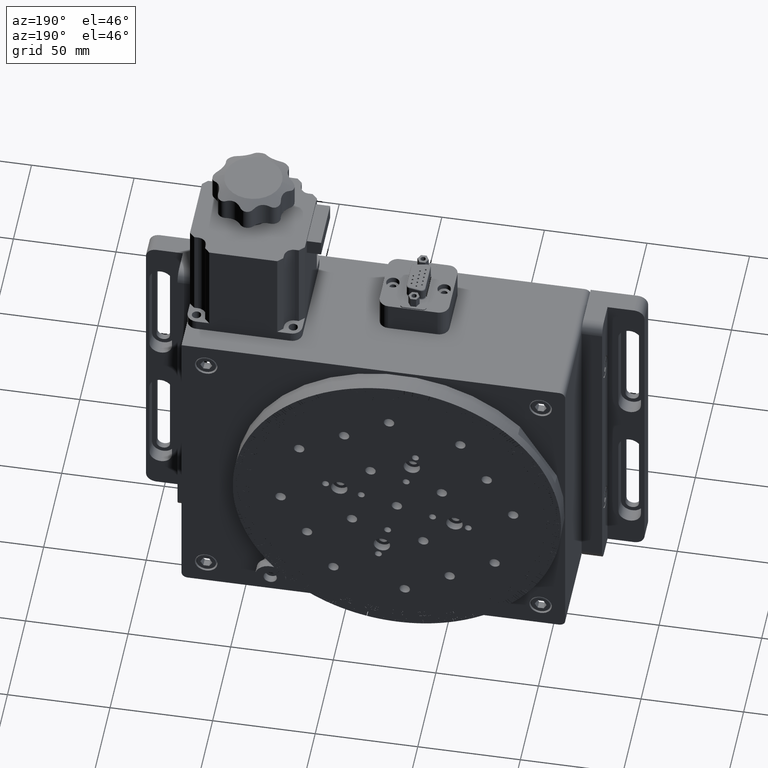
[diagram: clean part render]
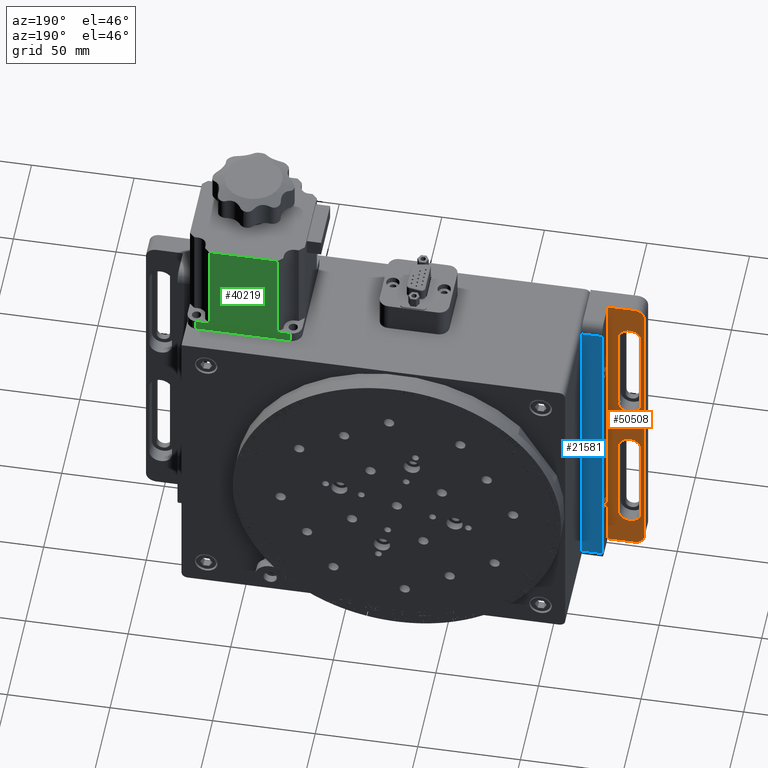
[diagram: same view with three faces highlighted in distinct colors, each labeled with its STEP entity id]
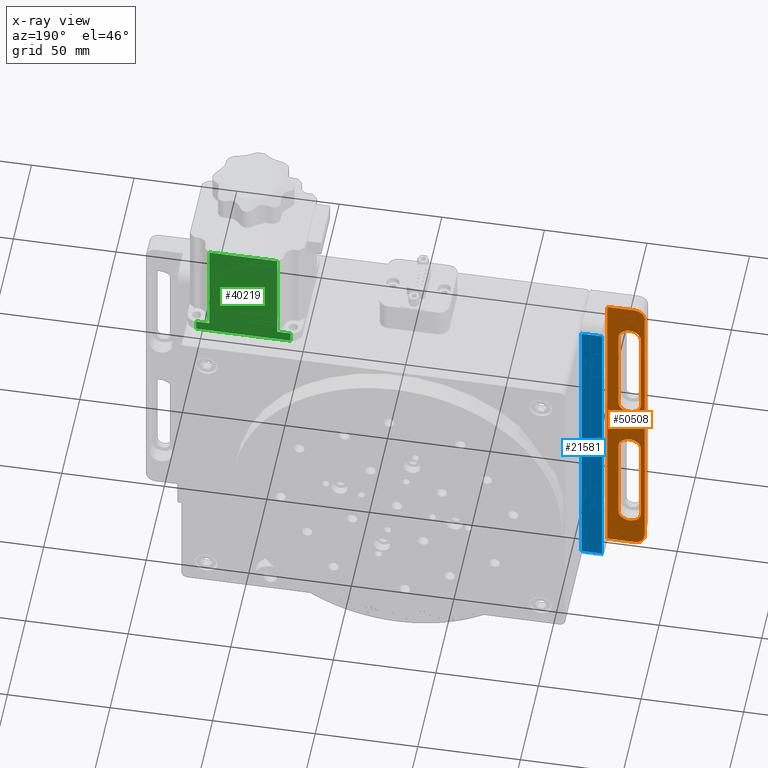
[diagram: x-ray of the same camera — body ghosted, the three highlighted faces saturated]
A machine part, auxiliary view with three faces highlighted in distinct colors.
The next image is the same camera in x-ray (body ghosted, the three faces saturated) — at least one of them is partly hidden behind the body in this view.
Their STEP definitions:

[orange] entity #50508 — the highlighted planar face has unit normal (0, -1, -0).
#1633 = DIRECTION ( 'NONE',  ( 0.0000000000000000000, 0.0000000000000000000, 1.000000000000000000 ) ) ;
#2646 = DIRECTION ( 'NONE',  ( -1.046312889825572800E-016, 1.000000000000000000, 2.312964634635740700E-018 ) ) ;
#2962 = CARTESIAN_POINT ( 'NONE',  ( 78.19999999999987500, 2.500000000000014200, -60.00000000000000700 ) ) ;
#5066 = CIRCLE ( 'NONE', #43935, 5.000000000000004400 ) ;
#6217 = EDGE_LOOP ( 'NONE', ( #17689, #30669, #11659, #85972, #66955 ) ) ;
#6474 = LINE ( 'NONE', #66350, #48348 ) ;
#6876 = CIRCLE ( 'NONE', #13412, 5.500000000000000000 ) ;
#8496 = CARTESIAN_POINT ( 'NONE',  ( 65.49999999999990100, 2.500000000000012400, 79.99999999999998600 ) ) ;
#9067 = CARTESIAN_POINT ( 'NONE',  ( 72.69999999999990300, 2.500000000000012400, 14.99999999999997900 ) ) ;
#9614 = CARTESIAN_POINT ( 'NONE',  ( 70.49999999999991500, 2.500000000000012400, 79.99999999999998600 ) ) ;
#9846 = ORIENTED_EDGE ( 'NONE', *, *, #58037, .T. ) ;
#11134 = DIRECTION ( 'NONE',  ( -1.046312889825572800E-016, 1.000000000000000000, 2.312964634635740700E-018 ) ) ;
#11549 = ORIENTED_EDGE ( 'NONE', *, *, #21638, .T. ) ;
#11659 = ORIENTED_EDGE ( 'NONE', *, *, #24937, .F. ) ;
#11674 = CARTESIAN_POINT ( 'NONE',  ( 83.49999999999991500, 2.500000000000014200, 79.99999999999998600 ) ) ;
#11910 = CIRCLE ( 'NONE', #42921, 5.499999999999998200 ) ;
#12031 = EDGE_CURVE ( 'NONE', #78227, #106723, #16577, .T. ) ;
#12056 = VERTEX_POINT ( 'NONE', #9614 ) ;
#12201 = VERTEX_POINT ( 'NONE', #29683 ) ;
#12597 = CARTESIAN_POINT ( 'NONE',  ( 70.49999999999990100, 2.500000000000012400, -75.00000000000001400 ) ) ;
#13412 = AXIS2_PLACEMENT_3D ( 'NONE', #86005, #35806, #94390 ) ;
#13854 = FACE_BOUND ( 'NONE', #23191, .T. ) ;
#14164 = ORIENTED_EDGE ( 'NONE', *, *, #31282, .T. ) ;
#15743 = VERTEX_POINT ( 'NONE', #22290 ) ;
#16288 = VECTOR ( 'NONE', #81412, 1000.000000000000000 ) ;
#16446 = FACE_BOUND ( 'NONE', #6217, .T. ) ;
#16577 = CIRCLE ( 'NONE', #30216, 5.499999999999998200 ) ;
#16885 = DIRECTION ( 'NONE',  ( -1.000000000000000000, -1.046312889825572800E-016, 5.551115123125781500E-017 ) ) ;
#17033 = ORIENTED_EDGE ( 'NONE', *, *, #59038, .F. ) ;
#17455 = DIRECTION ( 'NONE',  ( 0.0000000000000000000, 0.0000000000000000000, 1.000000000000000000 ) ) ;
#17689 = ORIENTED_EDGE ( 'NONE', *, *, #99766, .F. ) ;
#18605 = DIRECTION ( 'NONE',  ( -1.046312889825572800E-016, 1.000000000000000000, 2.312964634635740700E-018 ) ) ;
#20963 = VECTOR ( 'NONE', #102603, 1000.000000000000000 ) ;
#21012 = DIRECTION ( 'NONE',  ( 0.0000000000000000000, 0.0000000000000000000, -1.000000000000000000 ) ) ;
#21638 = EDGE_CURVE ( 'NONE', #87927, #36970, #76589, .T. ) ;
#22290 = CARTESIAN_POINT ( 'NONE',  ( 72.69999999999990300, 2.500000000000012400, -9.500000000000016000 ) ) ;
#22397 = VERTEX_POINT ( 'NONE', #67578 ) ;
#22514 = CARTESIAN_POINT ( 'NONE',  ( 78.19999999999990300, 2.500000000000014200, 59.99999999999996400 ) ) ;
#22853 = CARTESIAN_POINT ( 'NONE',  ( 78.19999999999990300, 2.500000000000014200, 59.99999999999996400 ) ) ;
#23191 = EDGE_LOOP ( 'NONE', ( #30565, #106517, #103382, #17033, #35012 ) ) ;
#23507 = DIRECTION ( 'NONE',  ( 3.205383489499367300E-016, -2.312964634635714500E-018, 1.000000000000000000 ) ) ;
#24937 = EDGE_CURVE ( 'NONE', #84743, #33855, #11910, .T. ) ;
#28478 = DIRECTION ( 'NONE',  ( -5.551115123125782700E-017, 2.312964634635742300E-018, -1.000000000000000000 ) ) ;
#29328 = LINE ( 'NONE', #33921, #93455 ) ;
#29683 = CARTESIAN_POINT ( 'NONE',  ( 67.19999999999988900, 2.500000000000012400, -15.00000000000001200 ) ) ;
#30216 = AXIS2_PLACEMENT_3D ( 'NONE', #91221, #41049, #99593 ) ;
#30565 = ORIENTED_EDGE ( 'NONE', *, *, #80839, .F. ) ;
#30669 = ORIENTED_EDGE ( 'NONE', *, *, #42763, .F. ) ;
#31282 = EDGE_CURVE ( 'NONE', #36970, #81062, #46436, .T. ) ;
#31679 = LINE ( 'NONE', #8496, #95884 ) ;
#31905 = CARTESIAN_POINT ( 'NONE',  ( 83.49999999999991500, 2.500000000000014200, -80.00000000000001400 ) ) ;
#32009 = VECTOR ( 'NONE', #28478, 1000.000000000000000 ) ;
#33298 = EDGE_CURVE ( 'NONE', #22397, #34610, #29328, .T. ) ;
#33855 = VERTEX_POINT ( 'NONE', #106393 ) ;
#33921 = CARTESIAN_POINT ( 'NONE',  ( 65.49999999999990100, 2.500000000000012400, 79.99999999999998600 ) ) ;
#34373 = CIRCLE ( 'NONE', #100650, 5.499999999999998200 ) ;
#34537 = CARTESIAN_POINT ( 'NONE',  ( 67.19999999999988900, 2.500000000000012400, -60.00000000000000700 ) ) ;
#34610 = VERTEX_POINT ( 'NONE', #98483 ) ;
#35012 = ORIENTED_EDGE ( 'NONE', *, *, #35232, .F. ) ;
#35232 = EDGE_CURVE ( 'NONE', #15743, #41308, #6876, .T. ) ;
#35806 = DIRECTION ( 'NONE',  ( -1.046312889825572800E-016, 1.000000000000000000, 2.312964634635740700E-018 ) ) ;
#36970 = VERTEX_POINT ( 'NONE', #31905 ) ;
#38526 = LINE ( 'NONE', #22514, #16288 ) ;
#40555 = EDGE_CURVE ( 'NONE', #103482, #84743, #38526, .T. ) ;
#40831 = EDGE_CURVE ( 'NONE', #71039, #103482, #34373, .T. ) ;
#40939 = LINE ( 'NONE', #2962, #85525 ) ;
#41049 = DIRECTION ( 'NONE',  ( -1.046312889825572800E-016, 1.000000000000000000, 2.312964634635740700E-018 ) ) ;
#41308 = VERTEX_POINT ( 'NONE', #107703 ) ;
#42673 = ORIENTED_EDGE ( 'NONE', *, *, #33298, .F. ) ;
#42763 = EDGE_CURVE ( 'NONE', #33855, #92901, #6474, .T. ) ;
#42921 = AXIS2_PLACEMENT_3D ( 'NONE', #9067, #67612, #17455 ) ;
#43904 = DIRECTION ( 'NONE',  ( 1.046312889825572800E-016, -1.000000000000000000, -2.312964634635748100E-018 ) ) ;
#43935 = AXIS2_PLACEMENT_3D ( 'NONE', #12597, #71129, #21012 ) ;
#46436 = LINE ( 'NONE', #52923, #66075 ) ;
#46586 = CIRCLE ( 'NONE', #100483, 5.000000000000004400 ) ;
#47153 = CARTESIAN_POINT ( 'NONE',  ( 70.49999999999990100, 2.500000000000012400, -80.00000000000001400 ) ) ;
#48348 = VECTOR ( 'NONE', #23507, 1000.000000000000000 ) ;
#49507 = CARTESIAN_POINT ( 'NONE',  ( 78.19999999999990300, 2.500000000000014200, 14.99999999999997700 ) ) ;
#50508 = ADVANCED_FACE ( 'NONE', ( #16446, #13854, #100189 ), #60401, .F. ) ;
#51687 = DIRECTION ( 'NONE',  ( -1.046312889825572800E-016, 1.000000000000000000, 2.312964634635740700E-018 ) ) ;
#52722 = CARTESIAN_POINT ( 'NONE',  ( 72.69999999999990300, 2.500000000000012400, 59.99999999999997900 ) ) ;
#52923 = CARTESIAN_POINT ( 'NONE',  ( 65.49999999999990100, 2.500000000000012400, -80.00000000000001400 ) ) ;
#53046 = DIRECTION ( 'NONE',  ( -5.551115123125782700E-017, 2.312964634635742300E-018, -1.000000000000000000 ) ) ;
#53295 = DIRECTION ( 'NONE',  ( -1.000000000000000000, -1.046312889825572800E-016, 5.551115123125781500E-017 ) ) ;
#56831 = CARTESIAN_POINT ( 'NONE',  ( 78.19999999999987500, 2.500000000000014200, -60.00000000000000700 ) ) ;
#57349 = CIRCLE ( 'NONE', #67594, 5.499999999999998200 ) ;
#58037 = EDGE_CURVE ( 'NONE', #22397, #12056, #46586, .T. ) ;
#58922 = CARTESIAN_POINT ( 'NONE',  ( 72.69999999999990300, 2.500000000000012400, 65.49999999999997200 ) ) ;
#59038 = EDGE_CURVE ( 'NONE', #41308, #78227, #40939, .T. ) ;
#60401 = PLANE ( 'NONE',  #78322 ) ;
#61123 = DIRECTION ( 'NONE',  ( 0.0000000000000000000, 0.0000000000000000000, 1.000000000000000000 ) ) ;
#61268 = CARTESIAN_POINT ( 'NONE',  ( 70.49999999999991500, 2.500000000000012400, 74.99999999999998600 ) ) ;
#64806 = ORIENTED_EDGE ( 'NONE', *, *, #76213, .T. ) ;
#66075 = VECTOR ( 'NONE', #53295, 1000.000000000000000 ) ;
#66350 = CARTESIAN_POINT ( 'NONE',  ( 67.19999999999991800, 2.500000000000012400, 59.99999999999997900 ) ) ;
#66360 = EDGE_CURVE ( 'NONE', #87927, #12056, #31679, .T. ) ;
#66566 = CIRCLE ( 'NONE', #103846, 5.500000000000000000 ) ;
#66955 = ORIENTED_EDGE ( 'NONE', *, *, #40831, .F. ) ;
#67578 = CARTESIAN_POINT ( 'NONE',  ( 65.49999999999990100, 2.500000000000012400, 74.99999999999998600 ) ) ;
#67594 = AXIS2_PLACEMENT_3D ( 'NONE', #52722, #2646, #61123 ) ;
#67612 = DIRECTION ( 'NONE',  ( -1.046312889825572800E-016, 1.000000000000000000, 2.312964634635740700E-018 ) ) ;
#68778 = CARTESIAN_POINT ( 'NONE',  ( 72.69999999999990300, 2.500000000000012400, -15.00000000000001400 ) ) ;
#69693 = DIRECTION ( 'NONE',  ( 0.0000000000000000000, 0.0000000000000000000, -1.000000000000000000 ) ) ;
#71039 = VERTEX_POINT ( 'NONE', #58922 ) ;
#71129 = DIRECTION ( 'NONE',  ( -1.046312889825572800E-016, 1.000000000000000000, 2.312964634635740700E-018 ) ) ;
#76213 = EDGE_CURVE ( 'NONE', #81062, #34610, #5066, .T. ) ;
#76417 = DIRECTION ( 'NONE',  ( -5.551115123125782700E-017, 2.312964634635742300E-018, -1.000000000000000000 ) ) ;
#76589 = LINE ( 'NONE', #11674, #32009 ) ;
#77190 = DIRECTION ( 'NONE',  ( 0.0000000000000000000, 0.0000000000000000000, 1.000000000000000000 ) ) ;
#78227 = VERTEX_POINT ( 'NONE', #56831 ) ;
#78322 = AXIS2_PLACEMENT_3D ( 'NONE', #94035, #43904, #102389 ) ;
#79499 = EDGE_LOOP ( 'NONE', ( #14164, #64806, #42673, #9846, #83440, #11549 ) ) ;
#80839 = EDGE_CURVE ( 'NONE', #12201, #15743, #66566, .T. ) ;
#81062 = VERTEX_POINT ( 'NONE', #47153 ) ;
#81412 = DIRECTION ( 'NONE',  ( -2.868076146948322200E-016, 2.312964634635718400E-018, -1.000000000000000000 ) ) ;
#83440 = ORIENTED_EDGE ( 'NONE', *, *, #66360, .F. ) ;
#84743 = VERTEX_POINT ( 'NONE', #49507 ) ;
#85113 = LINE ( 'NONE', #94248, #20963 ) ;
#85525 = VECTOR ( 'NONE', #53046, 1000.000000000000000 ) ;
#85972 = ORIENTED_EDGE ( 'NONE', *, *, #40555, .F. ) ;
#86005 = CARTESIAN_POINT ( 'NONE',  ( 72.69999999999990300, 2.500000000000012400, -15.00000000000001400 ) ) ;
#87927 = VERTEX_POINT ( 'NONE', #89399 ) ;
#88425 = CARTESIAN_POINT ( 'NONE',  ( 67.19999999999991800, 2.500000000000012400, 59.99999999999997900 ) ) ;
#89399 = CARTESIAN_POINT ( 'NONE',  ( 83.49999999999991500, 2.500000000000014200, 79.99999999999998600 ) ) ;
#91221 = CARTESIAN_POINT ( 'NONE',  ( 72.69999999999988900, 2.500000000000014200, -60.00000000000000700 ) ) ;
#92901 = VERTEX_POINT ( 'NONE', #88425 ) ;
#93455 = VECTOR ( 'NONE', #76417, 1000.000000000000000 ) ;
#94035 = CARTESIAN_POINT ( 'NONE',  ( 65.49999999999990100, 2.500000000000012400, 79.99999999999998600 ) ) ;
#94248 = CARTESIAN_POINT ( 'NONE',  ( 67.19999999999988900, 2.500000000000012400, -60.00000000000000700 ) ) ;
#94390 = DIRECTION ( 'NONE',  ( 0.0000000000000000000, 0.0000000000000000000, 1.000000000000000000 ) ) ;
#95884 = VECTOR ( 'NONE', #16885, 1000.000000000000000 ) ;
#98483 = CARTESIAN_POINT ( 'NONE',  ( 65.49999999999990100, 2.500000000000012400, -75.00000000000001400 ) ) ;
#99593 = DIRECTION ( 'NONE',  ( 0.0000000000000000000, 0.0000000000000000000, 1.000000000000000000 ) ) ;
#99766 = EDGE_CURVE ( 'NONE', #92901, #71039, #57349, .T. ) ;
#100189 = FACE_OUTER_BOUND ( 'NONE', #79499, .T. ) ;
#100483 = AXIS2_PLACEMENT_3D ( 'NONE', #61268, #11134, #69693 ) ;
#100650 = AXIS2_PLACEMENT_3D ( 'NONE', #101760, #51687, #1633 ) ;
#101760 = CARTESIAN_POINT ( 'NONE',  ( 72.69999999999990300, 2.500000000000012400, 59.99999999999997900 ) ) ;
#102389 = DIRECTION ( 'NONE',  ( -5.551115123125782700E-017, 2.312964634635742300E-018, -1.000000000000000000 ) ) ;
#102603 = DIRECTION ( 'NONE',  ( 3.623644594262663800E-017, -2.312964634635744200E-018, 1.000000000000000000 ) ) ;
#103186 = EDGE_CURVE ( 'NONE', #106723, #12201, #85113, .T. ) ;
#103382 = ORIENTED_EDGE ( 'NONE', *, *, #12031, .F. ) ;
#103482 = VERTEX_POINT ( 'NONE', #22853 ) ;
#103846 = AXIS2_PLACEMENT_3D ( 'NONE', #68778, #18605, #77190 ) ;
#106393 = CARTESIAN_POINT ( 'NONE',  ( 67.19999999999990300, 2.500000000000012400, 14.99999999999997700 ) ) ;
#106517 = ORIENTED_EDGE ( 'NONE', *, *, #103186, .F. ) ;
#106723 = VERTEX_POINT ( 'NONE', #34537 ) ;
#107703 = CARTESIAN_POINT ( 'NONE',  ( 78.19999999999988900, 2.500000000000014200, -15.00000000000001400 ) ) ;

[blue] entity #21581 — the highlighted planar face has unit normal (0, -1, -0).
#1649 = EDGE_CURVE ( 'NONE', #52323, #85046, #54291, .T. ) ;
#2958 = DIRECTION ( 'NONE',  ( -5.551115123125782700E-017, 2.312964634635742300E-018, -1.000000000000000000 ) ) ;
#9842 = EDGE_LOOP ( 'NONE', ( #100695, #69602, #16480, #31183 ) ) ;
#12007 = DIRECTION ( 'NONE',  ( -5.551115123125782700E-017, 2.312964634635742300E-018, -1.000000000000000000 ) ) ;
#13598 = VECTOR ( 'NONE', #12007, 1000.000000000000000 ) ;
#16480 = ORIENTED_EDGE ( 'NONE', *, *, #38779, .T. ) ;
#17225 = CARTESIAN_POINT ( 'NONE',  ( 93.49999999999990100, 17.50000000000001400, 74.99999999999998600 ) ) ;
#20392 = CARTESIAN_POINT ( 'NONE',  ( 83.49999999999991500, 17.50000000000001100, 79.99999999999998600 ) ) ;
#21581 = ADVANCED_FACE ( 'NONE', ( #38406 ), #52682, .F. ) ;
#28945 = CARTESIAN_POINT ( 'NONE',  ( 93.49999999999990100, 17.50000000000001400, -75.00000000000001400 ) ) ;
#31183 = ORIENTED_EDGE ( 'NONE', *, *, #1649, .T. ) ;
#33481 = EDGE_CURVE ( 'NONE', #57879, #85046, #102541, .T. ) ;
#37274 = CARTESIAN_POINT ( 'NONE',  ( 93.49999999999990100, 17.50000000000001400, 79.99999999999998600 ) ) ;
#38406 = FACE_OUTER_BOUND ( 'NONE', #9842, .T. ) ;
#38779 = EDGE_CURVE ( 'NONE', #44002, #52323, #74490, .T. ) ;
#44002 = VERTEX_POINT ( 'NONE', #17225 ) ;
#46508 = CARTESIAN_POINT ( 'NONE',  ( 83.49999999999991500, 17.50000000000001400, -75.00000000000001400 ) ) ;
#49611 = CARTESIAN_POINT ( 'NONE',  ( 83.49999999999991500, 17.50000000000001100, 74.99999999999998600 ) ) ;
#52323 = VERTEX_POINT ( 'NONE', #28945 ) ;
#52682 = PLANE ( 'NONE',  #107167 ) ;
#53043 = DIRECTION ( 'NONE',  ( 1.046312889825572800E-016, -1.000000000000000000, -2.312964634635748100E-018 ) ) ;
#54291 = LINE ( 'NONE', #79576, #98720 ) ;
#57877 = EDGE_CURVE ( 'NONE', #57879, #44002, #84564, .T. ) ;
#57879 = VERTEX_POINT ( 'NONE', #49611 ) ;
#62333 = VECTOR ( 'NONE', #108036, 1000.000000000000000 ) ;
#69602 = ORIENTED_EDGE ( 'NONE', *, *, #57877, .T. ) ;
#71881 = VECTOR ( 'NONE', #78323, 1000.000000000000000 ) ;
#74490 = LINE ( 'NONE', #37274, #71881 ) ;
#78323 = DIRECTION ( 'NONE',  ( -5.551115123125782700E-017, 2.312964634635742300E-018, -1.000000000000000000 ) ) ;
#79576 = CARTESIAN_POINT ( 'NONE',  ( 83.49999999999991500, 17.50000000000001400, -75.00000000000001400 ) ) ;
#82170 = CARTESIAN_POINT ( 'NONE',  ( 83.49999999999991500, 17.50000000000001100, 74.99999999999998600 ) ) ;
#84564 = LINE ( 'NONE', #82170, #62333 ) ;
#85046 = VERTEX_POINT ( 'NONE', #46508 ) ;
#88334 = DIRECTION ( 'NONE',  ( -1.000000000000000000, -1.046312889825572800E-016, 5.551115123125781500E-017 ) ) ;
#98720 = VECTOR ( 'NONE', #88334, 1000.000000000000000 ) ;
#100695 = ORIENTED_EDGE ( 'NONE', *, *, #33481, .F. ) ;
#102541 = LINE ( 'NONE', #20392, #13598 ) ;
#103081 = CARTESIAN_POINT ( 'NONE',  ( 83.49999999999991500, 17.50000000000001100, 79.99999999999998600 ) ) ;
#107167 = AXIS2_PLACEMENT_3D ( 'NONE', #103081, #53043, #2958 ) ;
#108036 = DIRECTION ( 'NONE',  ( 1.000000000000000000, 1.046312889825572800E-016, -5.551115123125781500E-017 ) ) ;

[green] entity #40219 — the highlighted planar face has unit normal (0, -1, -0).
#1877 = ORIENTED_EDGE ( 'NONE', *, *, #59129, .T. ) ;
#2072 = ORIENTED_EDGE ( 'NONE', *, *, #23229, .T. ) ;
#2354 = EDGE_CURVE ( 'NONE', #52286, #74362, #34327, .T. ) ;
#2755 = DIRECTION ( 'NONE',  ( 1.000000000000000000, 5.018307198361372800E-018, -1.641121256918008000E-017 ) ) ;
#3161 = ORIENTED_EDGE ( 'NONE', *, *, #86376, .T. ) ;
#3520 = EDGE_CURVE ( 'NONE', #11462, #12303, #44454, .T. ) ;
#3757 = CARTESIAN_POINT ( 'NONE',  ( 229.4999999999999700, 50.99999999999997900, 80.00000000000001400 ) ) ;
#9511 = VECTOR ( 'NONE', #42354, 1000.000000000000000 ) ;
#11462 = VERTEX_POINT ( 'NONE', #57641 ) ;
#12303 = VERTEX_POINT ( 'NONE', #72500 ) ;
#16799 = ORIENTED_EDGE ( 'NONE', *, *, #44498, .T. ) ;
#19574 = VECTOR ( 'NONE', #41277, 1000.000000000000000 ) ;
#19947 = LINE ( 'NONE', #71033, #84103 ) ;
#21168 = VERTEX_POINT ( 'NONE', #92990 ) ;
#21183 = CARTESIAN_POINT ( 'NONE',  ( 275.4999999999999400, 50.99999999999997900, 80.00000000000001400 ) ) ;
#23229 = EDGE_CURVE ( 'NONE', #70960, #102691, #69590, .T. ) ;
#25362 = EDGE_LOOP ( 'NONE', ( #96875, #37242, #2072, #1877, #87947, #61432, #3161, #16799 ) ) ;
#28204 = CARTESIAN_POINT ( 'NONE',  ( 269.0699999999999400, 50.99999999999997200, 85.00000000000000000 ) ) ;
#29572 = DIRECTION ( 'NONE',  ( -1.641121256918007700E-017, 6.319003473856979800E-017, -1.000000000000000000 ) ) ;
#30752 = CARTESIAN_POINT ( 'NONE',  ( 269.0699999999999400, 50.99999999999996400, 133.7999999999999800 ) ) ;
#31670 = VECTOR ( 'NONE', #70623, 1000.000000000000000 ) ;
#31927 = DIRECTION ( 'NONE',  ( 1.000000000000000000, 5.018307198361372800E-018, -1.641121256918008000E-017 ) ) ;
#31942 = VECTOR ( 'NONE', #95918, 1000.000000000000000 ) ;
#34327 = LINE ( 'NONE', #49393, #9511 ) ;
#35994 = FACE_OUTER_BOUND ( 'NONE', #25362, .T. ) ;
#37242 = ORIENTED_EDGE ( 'NONE', *, *, #82403, .T. ) ;
#38338 = VECTOR ( 'NONE', #29572, 1000.000000000000000 ) ;
#39782 = PLANE ( 'NONE',  #99242 ) ;
#40135 = CARTESIAN_POINT ( 'NONE',  ( 224.4999999999999700, 50.99999999999997900, 80.00000000000001400 ) ) ;
#40219 = ADVANCED_FACE ( 'NONE', ( #35994 ), #39782, .F. ) ;
#41277 = DIRECTION ( 'NONE',  ( 1.000000000000000000, 5.018307198361421300E-018, -1.641121256918008000E-017 ) ) ;
#42354 = DIRECTION ( 'NONE',  ( 1.000000000000000000, 5.018307198361421300E-018, -1.641121256918008000E-017 ) ) ;
#44454 = LINE ( 'NONE', #59240, #19574 ) ;
#44498 = EDGE_CURVE ( 'NONE', #21168, #52286, #19947, .T. ) ;
#47347 = VECTOR ( 'NONE', #31927, 1000.000000000000000 ) ;
#48597 = DIRECTION ( 'NONE',  ( -1.000000000000000000, -5.018307198361372800E-018, 1.641121256918008000E-017 ) ) ;
#49393 = CARTESIAN_POINT ( 'NONE',  ( 224.4999999999999700, 50.99999999999997200, 133.7999999999999800 ) ) ;
#50876 = CARTESIAN_POINT ( 'NONE',  ( 275.4999999999999400, 50.99999999999997900, 85.00000000000000000 ) ) ;
#52286 = VERTEX_POINT ( 'NONE', #53522 ) ;
#53522 = CARTESIAN_POINT ( 'NONE',  ( 235.9300000000000100, 50.99999999999997900, 133.7999999999999800 ) ) ;
#54315 = LINE ( 'NONE', #28204, #31942 ) ;
#55309 = VECTOR ( 'NONE', #2755, 1000.000000000000000 ) ;
#56658 = LINE ( 'NONE', #3757, #31670 ) ;
#57641 = CARTESIAN_POINT ( 'NONE',  ( 229.4999999999999700, 50.99999999999997900, 80.00000000000001400 ) ) ;
#57911 = LINE ( 'NONE', #61232, #55309 ) ;
#59129 = EDGE_CURVE ( 'NONE', #102691, #12303, #105119, .T. ) ;
#59240 = CARTESIAN_POINT ( 'NONE',  ( 224.4999999999999700, 50.99999999999997900, 80.00000000000001400 ) ) ;
#61232 = CARTESIAN_POINT ( 'NONE',  ( 224.4999999999999700, 50.99999999999997900, 85.00000000000001400 ) ) ;
#61432 = ORIENTED_EDGE ( 'NONE', *, *, #69886, .T. ) ;
#69590 = LINE ( 'NONE', #90195, #47347 ) ;
#69886 = EDGE_CURVE ( 'NONE', #11462, #104301, #56658, .T. ) ;
#70623 = DIRECTION ( 'NONE',  ( 1.641121256918007700E-017, -6.319003473856979800E-017, 1.000000000000000000 ) ) ;
#70960 = VERTEX_POINT ( 'NONE', #82713 ) ;
#71033 = CARTESIAN_POINT ( 'NONE',  ( 235.9300000000000100, 50.99999999999997900, 80.00000000000001400 ) ) ;
#72500 = CARTESIAN_POINT ( 'NONE',  ( 275.4999999999999400, 50.99999999999997900, 80.00000000000001400 ) ) ;
#74362 = VERTEX_POINT ( 'NONE', #30752 ) ;
#79002 = CARTESIAN_POINT ( 'NONE',  ( 229.4999999999999700, 50.99999999999997900, 85.00000000000001400 ) ) ;
#82403 = EDGE_CURVE ( 'NONE', #74362, #70960, #54315, .T. ) ;
#82713 = CARTESIAN_POINT ( 'NONE',  ( 269.0699999999999400, 50.99999999999997200, 85.00000000000000000 ) ) ;
#84103 = VECTOR ( 'NONE', #87887, 1000.000000000000000 ) ;
#86376 = EDGE_CURVE ( 'NONE', #104301, #21168, #57911, .T. ) ;
#87887 = DIRECTION ( 'NONE',  ( 1.641121256918007700E-017, -6.319003473856979800E-017, 1.000000000000000000 ) ) ;
#87947 = ORIENTED_EDGE ( 'NONE', *, *, #3520, .F. ) ;
#90195 = CARTESIAN_POINT ( 'NONE',  ( 224.4999999999999700, 50.99999999999997900, 85.00000000000001400 ) ) ;
#92990 = CARTESIAN_POINT ( 'NONE',  ( 235.9300000000000100, 50.99999999999997900, 85.00000000000001400 ) ) ;
#95918 = DIRECTION ( 'NONE',  ( -1.641121256918007700E-017, 6.319003473856979800E-017, -1.000000000000000000 ) ) ;
#96875 = ORIENTED_EDGE ( 'NONE', *, *, #2354, .T. ) ;
#98690 = DIRECTION ( 'NONE',  ( 5.018307198361372000E-018, -1.000000000000000000, -6.319003473856979800E-017 ) ) ;
#99242 = AXIS2_PLACEMENT_3D ( 'NONE', #40135, #98690, #48597 ) ;
#102691 = VERTEX_POINT ( 'NONE', #50876 ) ;
#104301 = VERTEX_POINT ( 'NONE', #79002 ) ;
#105119 = LINE ( 'NONE', #21183, #38338 ) ;